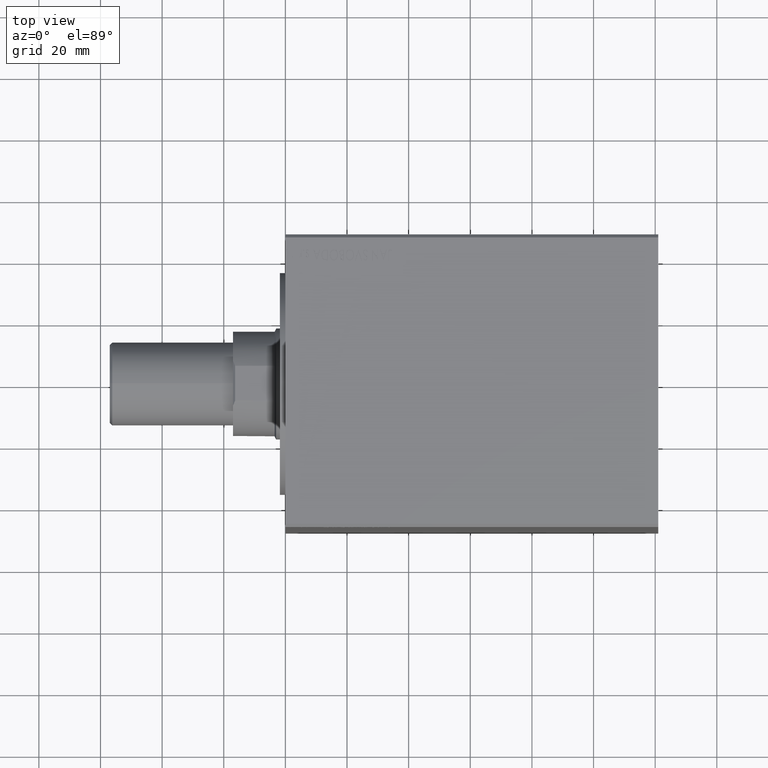
[diagram: clean part render]
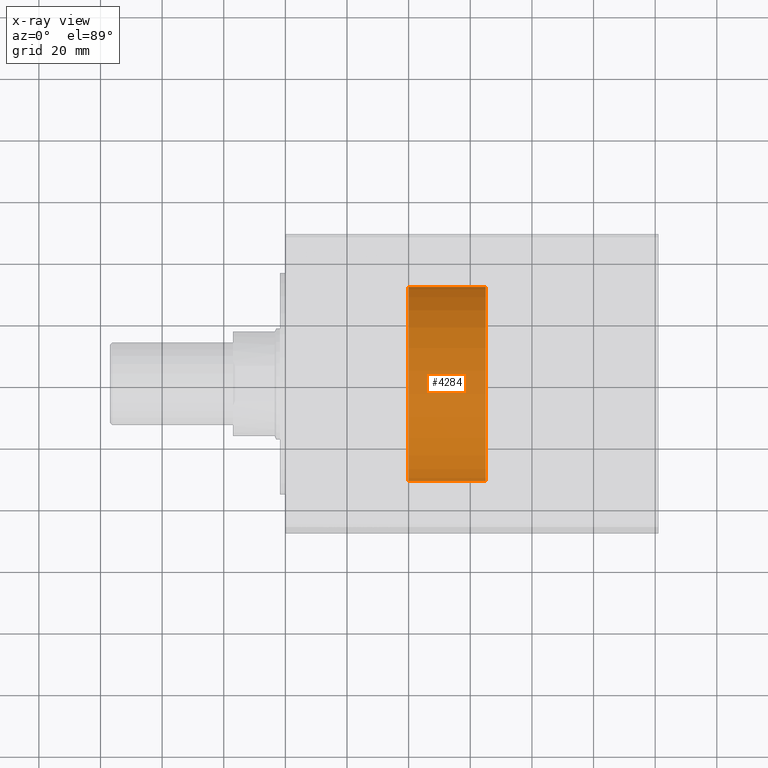
[diagram: x-ray — body ghosted, one internal face saturated and labeled with its STEP entity id]
A machine part, top view, then the same camera in x-ray: the body is ghosted and one INTERNAL B-rep face — a face not visible from any outside direction — is saturated and labeled: STEP entity #4284.
In plain terms, the highlighted cylindrical surface (partial cylindrical patch) has radius 31.5 mm, axis along (-1, 0, 0).
Its self-contained STEP definition (entity closure, byte-faithful):
#248 = LINE ( 'NONE', #27505, #2346 ) ;
#772 = VERTEX_POINT ( 'NONE', #41920 ) ;
#1084 = ORIENTED_EDGE ( 'NONE', *, *, #22986, .F. ) ;
#2068 = DIRECTION ( 'NONE',  ( 0.000000000000000000, -1.000000000000000000, 0.000000000000000000 ) ) ;
#2346 = VECTOR ( 'NONE', #31524, 1000.000000000000000 ) ;
#3373 = CARTESIAN_POINT ( 'NONE',  ( 0.000000000000000000, -3.440443486445987674E-15, 24.99999999999999289 ) ) ;
#3385 = VERTEX_POINT ( 'NONE', #29813 ) ;
#3517 = DIRECTION ( 'NONE',  ( -0.000000000000000000, -1.376177394578395099E-16, 1.000000000000000000 ) ) ;
#4284 = ADVANCED_FACE ( 'NONE', ( #42727 ), #32260, .T. ) ;
#8117 = AXIS2_PLACEMENT_3D ( 'NONE', #17929, #14596, #28187 ) ;
#10101 = ORIENTED_EDGE ( 'NONE', *, *, #36773, .F. ) ;
#11660 = VECTOR ( 'NONE', #3517, 1000.000000000000000 ) ;
#13677 = VERTEX_POINT ( 'NONE', #33741 ) ;
#14141 = ORIENTED_EDGE ( 'NONE', *, *, #36604, .T. ) ;
#14596 = DIRECTION ( 'NONE',  ( -0.000000000000000000, -1.376177394578395099E-16, 1.000000000000000000 ) ) ;
#17929 = CARTESIAN_POINT ( 'NONE',  ( 0.000000000000000000, 0.000000000000000000, 0.000000000000000000 ) ) ;
#22113 = CIRCLE ( 'NONE', #29840, 31.50000000000001421 ) ;
#22986 = EDGE_CURVE ( 'NONE', #35419, #3385, #22113, .T. ) ;
#23877 = LINE ( 'NONE', #37503, #11660 ) ;
#24900 = CARTESIAN_POINT ( 'NONE',  ( 0.000000000000000000, -1.128465463554283809E-14, 81.99999999999998579 ) ) ;
#27370 = CIRCLE ( 'NONE', #8117, 31.50000000000000000 ) ;
#27505 = CARTESIAN_POINT ( 'NONE',  ( 0.000000000000000000, -31.50000000000001421, 81.99999999999998579 ) ) ;
#27932 = AXIS2_PLACEMENT_3D ( 'NONE', #24900, #35817, #2068 ) ;
#28187 = DIRECTION ( 'NONE',  ( 0.000000000000000000, -1.000000000000000000, -1.376177394578395099E-16 ) ) ;
#29813 = CARTESIAN_POINT ( 'NONE',  ( 0.000000000000000000, -31.50000000000001421, 24.99999999999998934 ) ) ;
#29840 = AXIS2_PLACEMENT_3D ( 'NONE', #3373, #36688, #37126 ) ;
#31524 = DIRECTION ( 'NONE',  ( -0.000000000000000000, -1.376177394578395099E-16, 1.000000000000000000 ) ) ;
#32260 = CYLINDRICAL_SURFACE ( 'NONE', #27932, 31.50000000000000000 ) ;
#33741 = CARTESIAN_POINT ( 'NONE',  ( 3.857637417314162689E-15, 31.50000000000000000, 4.334958792921944698E-15 ) ) ;
#35419 = VERTEX_POINT ( 'NONE', #41613 ) ;
#35817 = DIRECTION ( 'NONE',  ( -0.000000000000000000, -1.376177394578395099E-16, 1.000000000000000000 ) ) ;
#36604 = EDGE_CURVE ( 'NONE', #772, #3385, #248, .T. ) ;
#36688 = DIRECTION ( 'NONE',  ( -0.000000000000000000, -1.376177394578395099E-16, 1.000000000000000000 ) ) ;
#36727 = EDGE_LOOP ( 'NONE', ( #10101, #40130, #14141, #1084 ) ) ;
#36773 = EDGE_CURVE ( 'NONE', #13677, #35419, #23877, .T. ) ;
#37126 = DIRECTION ( 'NONE',  ( 0.000000000000000000, -1.000000000000000000, -1.101411730778924678E-16 ) ) ;
#37503 = CARTESIAN_POINT ( 'NONE',  ( 3.857637417314162689E-15, 31.49999999999998579, 81.99999999999998579 ) ) ;
#40130 = ORIENTED_EDGE ( 'NONE', *, *, #41854, .T. ) ;
#41613 = CARTESIAN_POINT ( 'NONE',  ( 3.857637417314164267E-15, 31.50000000000001421, 24.99999999999999645 ) ) ;
#41854 = EDGE_CURVE ( 'NONE', #13677, #772, #27370, .T. ) ;
#41920 = CARTESIAN_POINT ( 'NONE',  ( 0.000000000000000000, -31.50000000000000000, -4.334958792921944698E-15 ) ) ;
#42727 = FACE_OUTER_BOUND ( 'NONE', #36727, .T. ) ;